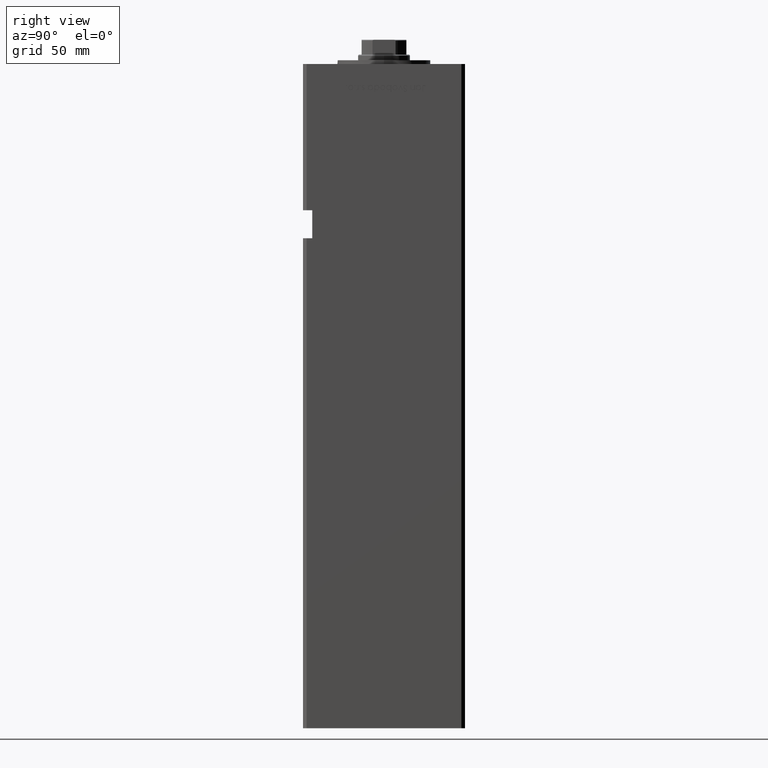
[diagram: clean part render]
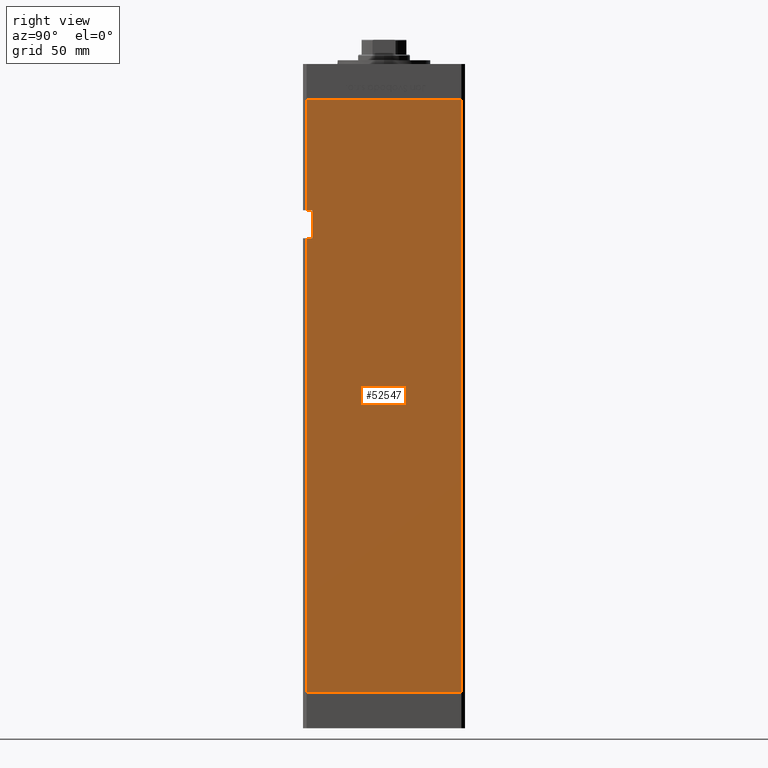
[diagram: same view with one face highlighted and labeled with its STEP entity id]
A machine part, right view. The second image highlights one B-rep face of the part: STEP entity #52547.
In plain terms, the highlighted planar face has unit normal (1, -0, 0).
Its self-contained STEP definition (entity closure, byte-faithful):
#1156 = VECTOR ( 'NONE', #27476, 1000.000000000000000 ) ;
#1447 = EDGE_CURVE ( 'NONE', #31758, #15252, #31171, .T. ) ;
#3283 = LINE ( 'NONE', #48428, #1156 ) ;
#4807 = VECTOR ( 'NONE', #26071, 1000.000000000000000 ) ;
#5004 = DIRECTION ( 'NONE',  ( -0.000000000000000000, -0.000000000000000000, -1.000000000000000000 ) ) ;
#5385 = ORIENTED_EDGE ( 'NONE', *, *, #9867, .T. ) ;
#5545 = CARTESIAN_POINT ( 'NONE',  ( 50.00000000000001421, 41.49999999999999289, 0.000000000000000000 ) ) ;
#6748 = ORIENTED_EDGE ( 'NONE', *, *, #27301, .F. ) ;
#7764 = ORIENTED_EDGE ( 'NONE', *, *, #10741, .F. ) ;
#8702 = LINE ( 'NONE', #25095, #48542 ) ;
#9867 = EDGE_CURVE ( 'NONE', #41128, #52628, #35999, .T. ) ;
#10505 = ORIENTED_EDGE ( 'NONE', *, *, #35261, .T. ) ;
#10741 = EDGE_CURVE ( 'NONE', #46886, #52718, #3283, .T. ) ;
#11012 = EDGE_CURVE ( 'NONE', #45552, #46886, #13605, .T. ) ;
#12243 = EDGE_LOOP ( 'NONE', ( #5385, #50264, #7764, #48345, #10505, #12683, #36871, #6748 ) ) ;
#12683 = ORIENTED_EDGE ( 'NONE', *, *, #25544, .T. ) ;
#13605 = LINE ( 'NONE', #42358, #47496 ) ;
#14269 = VERTEX_POINT ( 'NONE', #38811 ) ;
#14418 = DIRECTION ( 'NONE',  ( -0.000000000000000000, -0.000000000000000000, -1.000000000000000000 ) ) ;
#15252 = VERTEX_POINT ( 'NONE', #20138 ) ;
#15591 = CARTESIAN_POINT ( 'NONE',  ( 49.99999999999998579, -38.50000000000000000, 259.0000000000000000 ) ) ;
#16242 = CARTESIAN_POINT ( 'NONE',  ( 49.99999999999998579, -41.49999999999999289, 0.000000000000000000 ) ) ;
#18042 = VECTOR ( 'NONE', #38448, 1000.000000000000000 ) ;
#18842 = LINE ( 'NONE', #15591, #24374 ) ;
#19235 = CARTESIAN_POINT ( 'NONE',  ( 50.00000000000001421, 41.49999999999999289, 318.5000000000000000 ) ) ;
#20138 = CARTESIAN_POINT ( 'NONE',  ( 49.99999999999998579, -41.49999999999999289, 259.0000000000000000 ) ) ;
#20660 = CARTESIAN_POINT ( 'NONE',  ( 49.99999999999998579, -38.50000000000000000, 244.0000000000000000 ) ) ;
#22061 = CARTESIAN_POINT ( 'NONE',  ( 49.99999999999998579, -38.50000000000000000, 259.0000000000000000 ) ) ;
#23397 = DIRECTION ( 'NONE',  ( -0.000000000000000000, -0.000000000000000000, 1.000000000000000000 ) ) ;
#24374 = VECTOR ( 'NONE', #23397, 1000.000000000000000 ) ;
#24849 = AXIS2_PLACEMENT_3D ( 'NONE', #19235, #35634, #52560 ) ;
#25095 = CARTESIAN_POINT ( 'NONE',  ( 50.00000000000001421, 41.49999999999999289, 318.5000000000000000 ) ) ;
#25544 = EDGE_CURVE ( 'NONE', #14269, #15252, #51254, .T. ) ;
#26071 = DIRECTION ( 'NONE',  ( -0.000000000000000000, -0.000000000000000000, -1.000000000000000000 ) ) ;
#26626 = CARTESIAN_POINT ( 'NONE',  ( 49.99999999999998579, -38.49999999999999289, 244.0000000000000000 ) ) ;
#27179 = CARTESIAN_POINT ( 'NONE',  ( 49.99999999999998579, -38.50000000000000000, 259.0000000000000000 ) ) ;
#27301 = EDGE_CURVE ( 'NONE', #41128, #31758, #18842, .T. ) ;
#27476 = DIRECTION ( 'NONE',  ( -3.344045254895050973E-16, -1.000000000000000000, 0.000000000000000000 ) ) ;
#27560 = PLANE ( 'NONE',  #24849 ) ;
#31171 = LINE ( 'NONE', #22061, #18042 ) ;
#31758 = VERTEX_POINT ( 'NONE', #27179 ) ;
#32132 = FACE_OUTER_BOUND ( 'NONE', #12243, .T. ) ;
#32759 = DIRECTION ( 'NONE',  ( -0.000000000000000000, -1.000000000000000000, -0.000000000000000000 ) ) ;
#35261 = EDGE_CURVE ( 'NONE', #45552, #14269, #8702, .T. ) ;
#35634 = DIRECTION ( 'NONE',  ( 1.000000000000000000, -3.344045254895050480E-16, 0.000000000000000000 ) ) ;
#35999 = LINE ( 'NONE', #20660, #51767 ) ;
#36760 = EDGE_CURVE ( 'NONE', #52628, #52718, #38181, .T. ) ;
#36871 = ORIENTED_EDGE ( 'NONE', *, *, #1447, .F. ) ;
#38181 = LINE ( 'NONE', #50805, #4807 ) ;
#38448 = DIRECTION ( 'NONE',  ( -0.000000000000000000, -1.000000000000000000, -0.000000000000000000 ) ) ;
#38811 = CARTESIAN_POINT ( 'NONE',  ( 49.99999999999998579, -41.49999999999999289, 318.5000000000000000 ) ) ;
#41128 = VERTEX_POINT ( 'NONE', #26626 ) ;
#41488 = DIRECTION ( 'NONE',  ( -3.344045254895050973E-16, -1.000000000000000000, 0.000000000000000000 ) ) ;
#41915 = VECTOR ( 'NONE', #14418, 1000.000000000000000 ) ;
#42358 = CARTESIAN_POINT ( 'NONE',  ( 50.00000000000001421, 41.49999999999999289, 318.5000000000000000 ) ) ;
#45003 = CARTESIAN_POINT ( 'NONE',  ( 49.99999999999998579, -41.49999999999999289, 244.0000000000000000 ) ) ;
#45552 = VERTEX_POINT ( 'NONE', #49959 ) ;
#46886 = VERTEX_POINT ( 'NONE', #5545 ) ;
#47496 = VECTOR ( 'NONE', #5004, 1000.000000000000000 ) ;
#48345 = ORIENTED_EDGE ( 'NONE', *, *, #11012, .F. ) ;
#48428 = CARTESIAN_POINT ( 'NONE',  ( 50.00000000000001421, 41.49999999999999289, 0.000000000000000000 ) ) ;
#48542 = VECTOR ( 'NONE', #41488, 1000.000000000000000 ) ;
#49959 = CARTESIAN_POINT ( 'NONE',  ( 50.00000000000001421, 41.49999999999999289, 318.5000000000000000 ) ) ;
#50264 = ORIENTED_EDGE ( 'NONE', *, *, #36760, .T. ) ;
#50727 = CARTESIAN_POINT ( 'NONE',  ( 49.99999999999998579, -41.49999999999999289, 318.5000000000000000 ) ) ;
#50805 = CARTESIAN_POINT ( 'NONE',  ( 49.99999999999998579, -41.49999999999999289, 318.5000000000000000 ) ) ;
#51254 = LINE ( 'NONE', #50727, #41915 ) ;
#51767 = VECTOR ( 'NONE', #32759, 1000.000000000000000 ) ;
#52547 = ADVANCED_FACE ( 'NONE', ( #32132 ), #27560, .T. ) ;
#52560 = DIRECTION ( 'NONE',  ( 3.344045254895050480E-16, 1.000000000000000000, 0.000000000000000000 ) ) ;
#52628 = VERTEX_POINT ( 'NONE', #45003 ) ;
#52718 = VERTEX_POINT ( 'NONE', #16242 ) ;